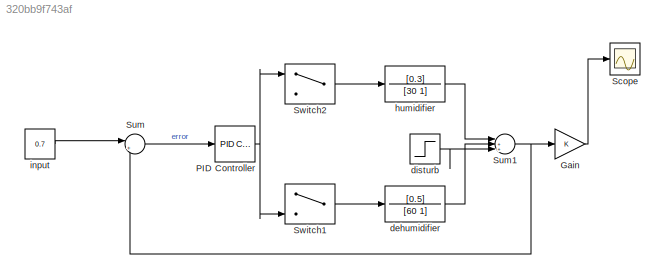
MODEL slx_320bb9f743af
KIND model
CONFIG AbsTol = auto
CONFIG EnableMultiTasking = off
CONFIG FixedStep = auto
CONFIG MaxStep = auto
CONFIG MinStep = auto
CONFIG RelTol = 1e-3
CONFIG SampleTimeConstraint = Unconstrained
CONFIG SolverName = VariableStepAuto
CONFIG StartTime = 0.0
CONFIG StopTime = 400
BLOCK [Gain] Gain
BLOCK [Reference] PID Controller  REF=slpidlib/PID Controller
  LibrarySourceBlock = simulink/Continuous/PID Controller
  SourceBlock = slpidlib/PID Controller
  SourceType = PID 1dof
BLOCK [Scope] Scope
  Floating = off
  NumInputPorts = 1
  ScopeSpecificationString = Simulink.scopes.TimeScopeBlockCfg('CurrentConfiguration', extmgr.ConfigurationSet(extmgr.Configuration('Core','General UI',true),extmgr.Configuration('Core','Source UI',true),extmgr.Configuration('Sources','WiredSimulink',true),extmgr.Configuration('Visuals','Time Domain',true,'SerializedDisplays',{struct('MinYLimReal','-0.825','MaxYLimReal','-0.575','YLabelReal','','MinYLimMag','0.00000','MaxYLim...<+1458ch>
BLOCK [Sum] Sum
  Inputs = |+-
BLOCK [Sum] Sum1
  Inputs = |++-
BLOCK [Switch] Switch1
  InputSameDT = off
  SaturateOnIntegerOverflow = off
BLOCK [Switch] Switch2
  InputSameDT = off
  SaturateOnIntegerOverflow = off
BLOCK [TransferFcn] dehumidifier
  Denominator = [60 1]
  Numerator = [0.5]
BLOCK [Step] disturb
  After = 0.8
  Before = 0.6
  SampleTime = 0
  Time = 150
BLOCK [TransferFcn] humidifier 
  Denominator = [30 1]
  Numerator = [0.3]
BLOCK [Constant] input
  Value = 0.7
LINE Gain:1 -> Scope:1
NET PID Controller:1 -> Switch1:3, Switch2:1
NET Sum1:1 -> Gain:1, Sum:2
LINE Sum:1 -> PID Controller:1
LINE Switch1:1 -> dehumidifier:1
LINE Switch2:1 -> humidifier :1
LINE dehumidifier:1 -> Sum1:2
LINE disturb:1 -> Sum1:3
LINE humidifier :1 -> Sum1:1
LINE input:1 -> Sum:1
note: NET lines group one-source signal fan-out (src -> all destinations, sorted); 1:1 wires keep LINE
